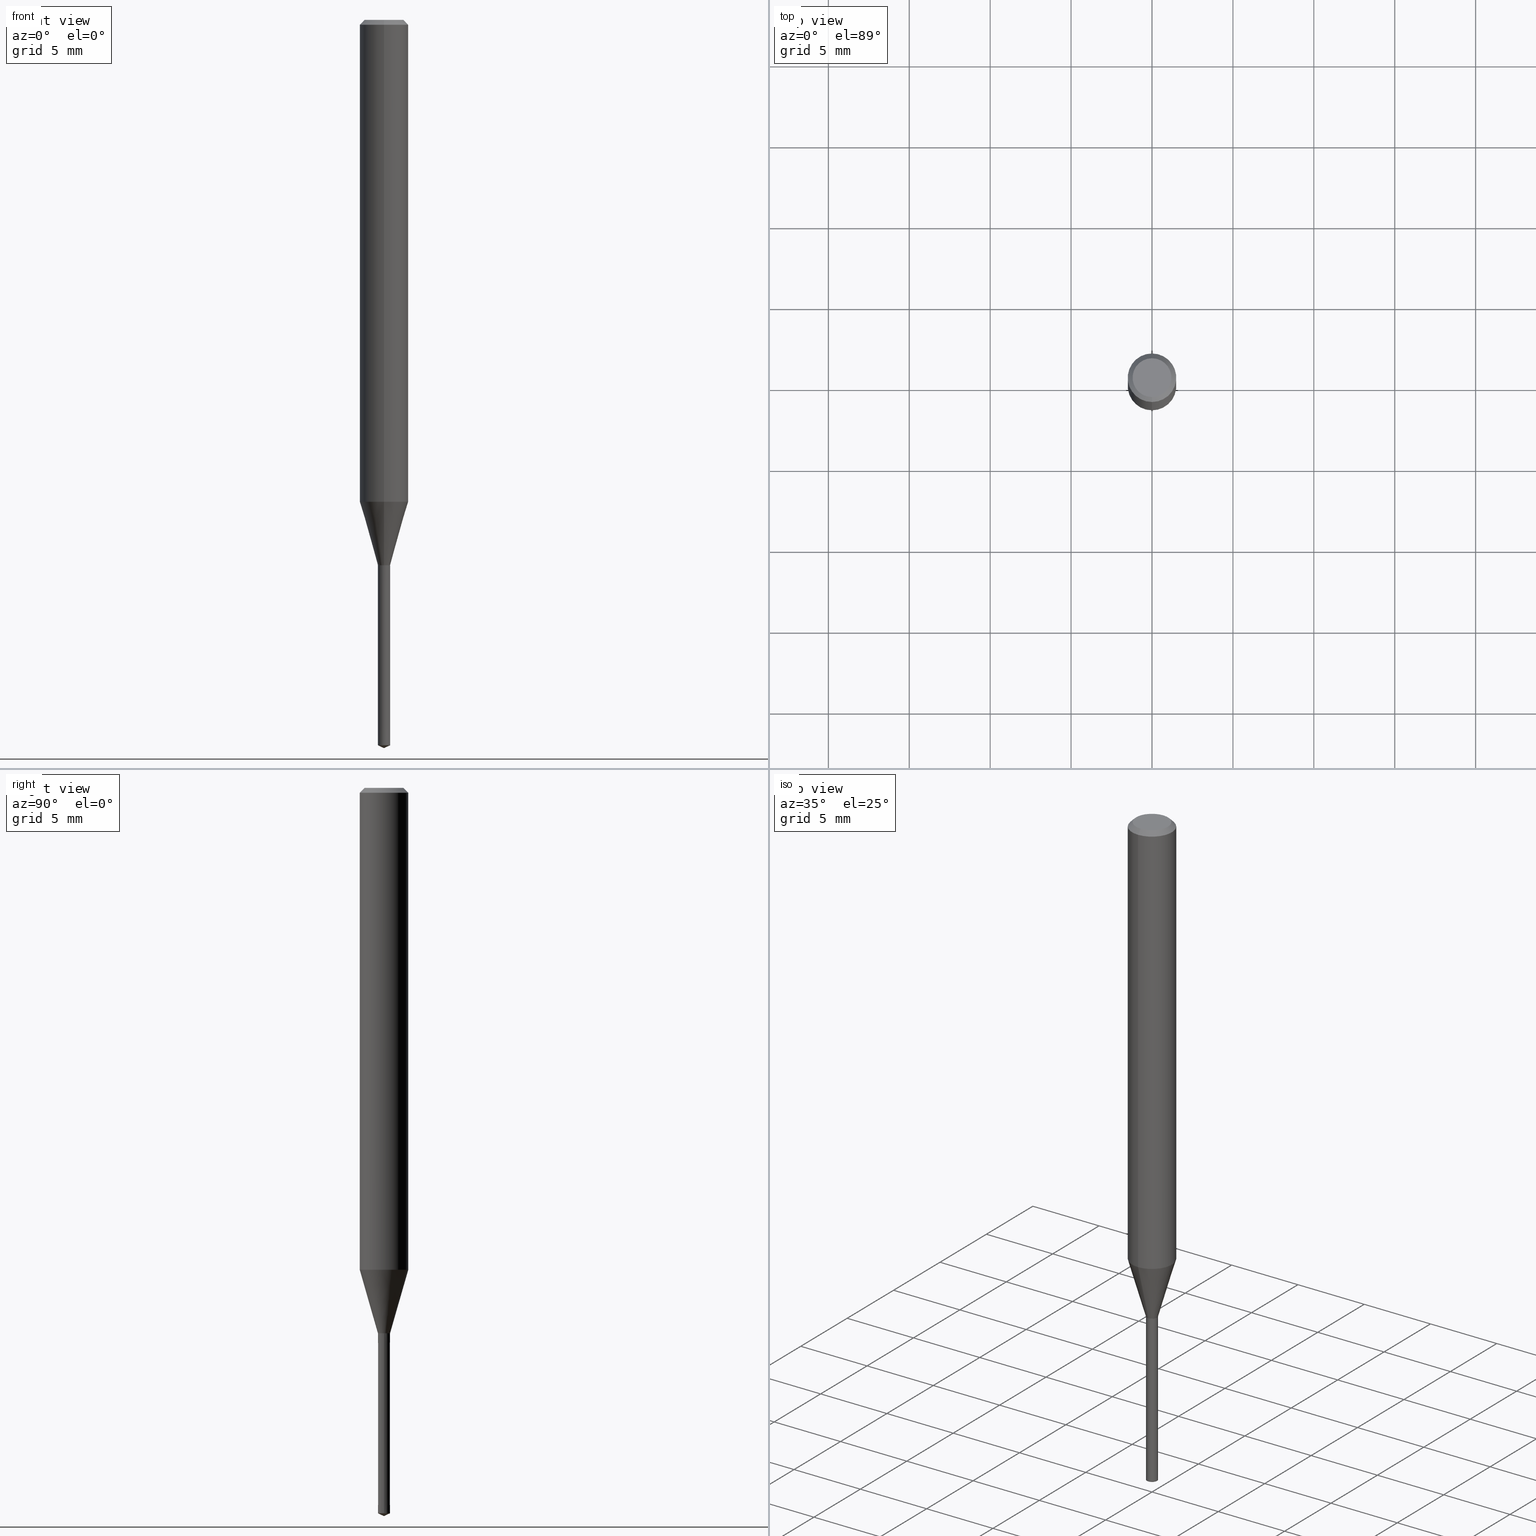
[diagram: canonical four-view strip — front | top / right | iso, engineering-drawing reading convention]
A machine part, canonical four-view strip (front | top / right | iso — engineering-drawing reading convention). The complete STEP part file that produces these views, byte-faithful:
ISO-10303-21;
HEADER;
FILE_DESCRIPTION(('no description'),'unknown implementation level');
FILE_NAME('UTDLX2075-113-Huellk.stp','  ',('CIMSOURCE GmbH'),('CADClick - KiM GmbH - www.kimweb.de'),'unknown preprocess','ACIS','unknown authorization');
FILE_SCHEMA(('automotive_design'));
ENDSEC;
DATA;
#1=MECHANICAL_DESIGN_GEOMETRIC_PRESENTATION_REPRESENTATION(' ',(#14,#15,#16,#17,#18,#19,#20,#21,#22,#23,#24,#25,#26,#27,#28,#29,#30,#31,#32,#33,#34,#35,#36,#37,#38,#39,#40,#41,#42,#43,#44,#45,#46,#47,#48,#49,#50,#51,#52,#53,#54,#55,#56,#57,#58,#59,#60,#61,#62,#63,#64,#65,#66,#67,#68,#69,#70,#71),#10);
#2=PRODUCT_DEFINITION_CONTEXT('',#72,'design');
#3=APPLICATION_PROTOCOL_DEFINITION('INTERNATIONAL STANDARD','automotive_design',1994,#72);
#4=PRODUCT_CATEGORY_RELATIONSHIP('NONE','NONE',#73,#74);
#5=SHAPE_DEFINITION_REPRESENTATION(#75,#76);
#6=PRODUCT_DEFINITION_CONTEXT('',#77,'design');
#7=APPLICATION_PROTOCOL_DEFINITION('INTERNATIONAL STANDARD','automotive_design',1994,#77);
#8=PRODUCT_CATEGORY_RELATIONSHIP('NONE','NONE',#78,#79);
#9=SHAPE_DEFINITION_REPRESENTATION(#80,#81);
#10= (GEOMETRIC_REPRESENTATION_CONTEXT(3)GLOBAL_UNCERTAINTY_ASSIGNED_CONTEXT((#84))GLOBAL_UNIT_ASSIGNED_CONTEXT((#86,#87,#88))REPRESENTATION_CONTEXT('NONE','WORKSPACE'));
#14=STYLED_ITEM('',(#90),#91);
#15=STYLED_ITEM('',(#92),#93);
#16=STYLED_ITEM('',(#94),#95);
#17=STYLED_ITEM('',(#96),#97);
#18=STYLED_ITEM('',(#98),#99);
#19=STYLED_ITEM('',(#100),#101);
#20=STYLED_ITEM('',(#102),#103);
#21=STYLED_ITEM('',(#104),#105);
#22=STYLED_ITEM('',(#106),#107);
#23=STYLED_ITEM('',(#108),#109);
#24=STYLED_ITEM('',(#110),#111);
#25=STYLED_ITEM('',(#112),#113);
#26=STYLED_ITEM('',(#114),#115);
#27=STYLED_ITEM('',(#116),#117);
#28=STYLED_ITEM('',(#118),#119);
#29=STYLED_ITEM('',(#120),#121);
#30=STYLED_ITEM('',(#122),#123);
#31=STYLED_ITEM('',(#124),#125);
#32=STYLED_ITEM('',(#126),#127);
#33=STYLED_ITEM('',(#128),#129);
#34=STYLED_ITEM('',(#130),#131);
#35=STYLED_ITEM('',(#132),#133);
#36=STYLED_ITEM('',(#134),#135);
#37=STYLED_ITEM('',(#136),#137);
#38=STYLED_ITEM('',(#138),#139);
#39=STYLED_ITEM('',(#140),#141);
#40=STYLED_ITEM('',(#142),#143);
#41=STYLED_ITEM('',(#144),#145);
#42=STYLED_ITEM('',(#146),#147);
#43=STYLED_ITEM('',(#148),#149);
#44=STYLED_ITEM('',(#150),#151);
#45=STYLED_ITEM('',(#152),#153);
#46=STYLED_ITEM('',(#154),#155);
#47=STYLED_ITEM('',(#156),#157);
#48=STYLED_ITEM('',(#158),#159);
#49=STYLED_ITEM('',(#160),#161);
#50=STYLED_ITEM('',(#162),#163);
#51=STYLED_ITEM('',(#164),#165);
#52=STYLED_ITEM('',(#166),#167);
#53=STYLED_ITEM('',(#168),#169);
#54=STYLED_ITEM('',(#170),#171);
#55=STYLED_ITEM('',(#172),#173);
#56=STYLED_ITEM('',(#174),#175);
#57=STYLED_ITEM('',(#176),#177);
#58=STYLED_ITEM('',(#178),#179);
#59=STYLED_ITEM('',(#180),#181);
#60=STYLED_ITEM('',(#182),#183);
#61=STYLED_ITEM('',(#184),#185);
#62=STYLED_ITEM('',(#186),#187);
#63=STYLED_ITEM('',(#188),#189);
#64=STYLED_ITEM('',(#190),#191);
#65=STYLED_ITEM('',(#192),#193);
#66=STYLED_ITEM('',(#194),#195);
#67=STYLED_ITEM('',(#196),#197);
#68=STYLED_ITEM('',(#198),#199);
#69=STYLED_ITEM('',(#200),#201);
#70=STYLED_ITEM('',(#202),#203);
#71=STYLED_ITEM('',(#204),#205);
#72=APPLICATION_CONTEXT(' ');
#73=PRODUCT_CATEGORY('part','NONE');
#74=PRODUCT_RELATED_PRODUCT_CATEGORY('detail',' ',(#206));
#75=PRODUCT_DEFINITION_SHAPE('NONE','NONE',#207);
#76=ADVANCED_BREP_SHAPE_REPRESENTATION('1',(#91,#208),#10);
#77=APPLICATION_CONTEXT(' ');
#78=PRODUCT_CATEGORY('part','NONE');
#79=PRODUCT_RELATED_PRODUCT_CATEGORY('detail',' ',(#209));
#80=PRODUCT_DEFINITION_SHAPE('NONE','NONE',#210);
#81=ADVANCED_BREP_SHAPE_REPRESENTATION('2',(#111,#211),#10);
#84=UNCERTAINTY_MEASURE_WITH_UNIT(LENGTH_MEASURE(1.0E-006),#86,'','');
#86= (CONVERSION_BASED_UNIT('MILLIMETRE',#214)LENGTH_UNIT()NAMED_UNIT(#217));
#87= (NAMED_UNIT(#219)PLANE_ANGLE_UNIT()SI_UNIT($,.RADIAN.));
#88= (NAMED_UNIT(#219)SOLID_ANGLE_UNIT()SI_UNIT($,.STERADIAN.));
#90=PRESENTATION_STYLE_ASSIGNMENT((#225));
#91=MANIFOLD_SOLID_BREP('1',#226);
#92=PRESENTATION_STYLE_ASSIGNMENT((#227));
#93=VERTEX_POINT('',#228);
#94=PRESENTATION_STYLE_ASSIGNMENT((#229));
#95=EDGE_CURVE('',#107,#197,#230,.T.);
#96=PRESENTATION_STYLE_ASSIGNMENT((#231));
#97=EDGE_CURVE('',#183,#175,#232,.T.);
#98=PRESENTATION_STYLE_ASSIGNMENT((#233));
#99=EDGE_CURVE('',#127,#193,#234,.T.);
#100=PRESENTATION_STYLE_ASSIGNMENT((#235));
#101=ADVANCED_FACE('',(#236),#237,.T.);
#102=PRESENTATION_STYLE_ASSIGNMENT((#238));
#103=EDGE_CURVE('',#143,#121,#239,.T.);
#104=PRESENTATION_STYLE_ASSIGNMENT((#240));
#105=ADVANCED_FACE('',(#241),#242,.T.);
#106=PRESENTATION_STYLE_ASSIGNMENT((#243));
#107=VERTEX_POINT('',#244);
#108=PRESENTATION_STYLE_ASSIGNMENT((#245));
#109=ADVANCED_FACE('',(#246),#247,.T.);
#110=PRESENTATION_STYLE_ASSIGNMENT((#248));
#111=MANIFOLD_SOLID_BREP('2',#249);
#112=PRESENTATION_STYLE_ASSIGNMENT((#250));
#113=ADVANCED_FACE('',(#251),#252,.T.);
#114=PRESENTATION_STYLE_ASSIGNMENT((#253));
#115=EDGE_CURVE('',#185,#143,#254,.T.);
#116=PRESENTATION_STYLE_ASSIGNMENT((#255));
#117=EDGE_CURVE('',#143,#119,#256,.T.);
#118=PRESENTATION_STYLE_ASSIGNMENT((#257));
#119=VERTEX_POINT('',#258);
#120=PRESENTATION_STYLE_ASSIGNMENT((#259));
#121=VERTEX_POINT('',#260);
#122=PRESENTATION_STYLE_ASSIGNMENT((#261));
#123=EDGE_CURVE('',#175,#129,#262,.T.);
#124=PRESENTATION_STYLE_ASSIGNMENT((#263));
#125=ADVANCED_FACE('',(#264),#265,.T.);
#126=PRESENTATION_STYLE_ASSIGNMENT((#266));
#127=VERTEX_POINT('',#267);
#128=PRESENTATION_STYLE_ASSIGNMENT((#268));
#129=VERTEX_POINT('',#269);
#130=PRESENTATION_STYLE_ASSIGNMENT((#270));
#131=EDGE_CURVE('',#183,#137,#271,.T.);
#132=PRESENTATION_STYLE_ASSIGNMENT((#272));
#133=EDGE_CURVE('',#191,#129,#273,.T.);
#134=PRESENTATION_STYLE_ASSIGNMENT((#274));
#135=EDGE_CURVE('',#121,#185,#275,.T.);
#136=PRESENTATION_STYLE_ASSIGNMENT((#276));
#137=VERTEX_POINT('',#277);
#138=PRESENTATION_STYLE_ASSIGNMENT((#278));
#139=ADVANCED_FACE('',(#279),#280,.T.);
#140=PRESENTATION_STYLE_ASSIGNMENT((#281));
#141=ADVANCED_FACE('',(#282),#283,.T.);
#142=PRESENTATION_STYLE_ASSIGNMENT((#284));
#143=VERTEX_POINT('',#285);
#144=PRESENTATION_STYLE_ASSIGNMENT((#286));
#145=VERTEX_POINT('',#287);
#146=PRESENTATION_STYLE_ASSIGNMENT((#288));
#147=ADVANCED_FACE('',(#289),#290,.T.);
#148=PRESENTATION_STYLE_ASSIGNMENT((#291));
#149=ADVANCED_FACE('',(#292),#293,.T.);
#150=PRESENTATION_STYLE_ASSIGNMENT((#294));
#151=EDGE_CURVE('',#197,#107,#295,.T.);
#152=PRESENTATION_STYLE_ASSIGNMENT((#296));
#153=EDGE_CURVE('',#175,#93,#297,.T.);
#154=PRESENTATION_STYLE_ASSIGNMENT((#298));
#155=ADVANCED_FACE('',(#299),#300,.T.);
#156=PRESENTATION_STYLE_ASSIGNMENT((#301));
#157=EDGE_CURVE('',#197,#183,#302,.T.);
#158=PRESENTATION_STYLE_ASSIGNMENT((#303));
#159=EDGE_CURVE('',#93,#191,#304,.T.);
#160=PRESENTATION_STYLE_ASSIGNMENT((#305));
#161=EDGE_CURVE('',#129,#137,#306,.T.);
#162=PRESENTATION_STYLE_ASSIGNMENT((#307));
#163=EDGE_CURVE('',#129,#175,#308,.T.);
#164=PRESENTATION_STYLE_ASSIGNMENT((#309));
#165=EDGE_CURVE('',#145,#121,#310,.T.);
#166=PRESENTATION_STYLE_ASSIGNMENT((#311));
#167=EDGE_CURVE('',#121,#143,#312,.T.);
#168=PRESENTATION_STYLE_ASSIGNMENT((#313));
#169=ADVANCED_FACE('',(#314),#315,.T.);
#170=PRESENTATION_STYLE_ASSIGNMENT((#316));
#171=EDGE_CURVE('',#127,#197,#317,.T.);
#172=PRESENTATION_STYLE_ASSIGNMENT((#318));
#173=EDGE_CURVE('',#191,#93,#319,.T.);
#174=PRESENTATION_STYLE_ASSIGNMENT((#320));
#175=VERTEX_POINT('',#321);
#176=PRESENTATION_STYLE_ASSIGNMENT((#322));
#177=ADVANCED_FACE('',(#323),#324,.T.);
#178=PRESENTATION_STYLE_ASSIGNMENT((#325));
#179=EDGE_CURVE('',#137,#183,#326,.T.);
#180=PRESENTATION_STYLE_ASSIGNMENT((#327));
#181=ADVANCED_FACE('',(#328),#329,.T.);
#182=PRESENTATION_STYLE_ASSIGNMENT((#330));
#183=VERTEX_POINT('',#331);
#184=PRESENTATION_STYLE_ASSIGNMENT((#332));
#185=VERTEX_POINT('',#333);
#186=PRESENTATION_STYLE_ASSIGNMENT((#334));
#187=ADVANCED_FACE('',(#335),#336,.T.);
#188=PRESENTATION_STYLE_ASSIGNMENT((#337));
#189=EDGE_CURVE('',#107,#193,#338,.T.);
#190=PRESENTATION_STYLE_ASSIGNMENT((#339));
#191=VERTEX_POINT('',#340);
#192=PRESENTATION_STYLE_ASSIGNMENT((#341));
#193=VERTEX_POINT('',#342);
#194=PRESENTATION_STYLE_ASSIGNMENT((#343));
#195=EDGE_CURVE('',#119,#145,#344,.T.);
#196=PRESENTATION_STYLE_ASSIGNMENT((#345));
#197=VERTEX_POINT('',#346);
#198=PRESENTATION_STYLE_ASSIGNMENT((#347));
#199=EDGE_CURVE('',#137,#107,#348,.T.);
#200=PRESENTATION_STYLE_ASSIGNMENT((#349));
#201=ADVANCED_FACE('',(#350),#351,.T.);
#202=PRESENTATION_STYLE_ASSIGNMENT((#352));
#203=EDGE_CURVE('',#193,#127,#353,.T.);
#204=PRESENTATION_STYLE_ASSIGNMENT((#354));
#205=EDGE_CURVE('',#145,#119,#355,.T.);
#206=PRODUCT('1','1','PART-1-DESC',(#356));
#207=PRODUCT_DEFINITION('NONE','NONE',#357,#2);
#208=AXIS2_PLACEMENT_3D('',#358,#359,#360);
#209=PRODUCT('2','2','PART-2-DESC',(#361));
#210=PRODUCT_DEFINITION('NONE','NONE',#362,#6);
#211=AXIS2_PLACEMENT_3D('',#363,#364,#365);
#214=LENGTH_MEASURE_WITH_UNIT(LENGTH_MEASURE(1.0),#366);
#217=DIMENSIONAL_EXPONENTS(1.0,0.0,0.0,0.0,0.0,0.0,0.0);
#219=DIMENSIONAL_EXPONENTS(0.0,0.0,0.0,0.0,0.0,0.0,0.0);
#225=SURFACE_STYLE_USAGE(.BOTH.,#367);
#226=CLOSED_SHELL('',(#147,#113,#169,#177,#201,#187,#101,#125,#149,#109));
#227=POINT_STYLE(' ',#368,POSITIVE_LENGTH_MEASURE(1.0E-006),#369);
#228=CARTESIAN_POINT('',(1.46952762458685E-016,-1.2,0.0));
#229=CURVE_STYLE('',#370,POSITIVE_LENGTH_MEASURE(1.0E-006),#371);
#230=CIRCLE('',#372,0.375);
#231=CURVE_STYLE('',#373,POSITIVE_LENGTH_MEASURE(1.0E-006),#374);
#232=LINE('',#375,#376);
#233=CURVE_STYLE('',#377,POSITIVE_LENGTH_MEASURE(1.0E-006),#378);
#234=CIRCLE('',#379,0.3755);
#235=SURFACE_STYLE_USAGE(.BOTH.,#380);
#236=FACE_OUTER_BOUND('',#381,.T.);
#237=CYLINDRICAL_SURFACE('',#382,1.5);
#238=CURVE_STYLE('',#383,POSITIVE_LENGTH_MEASURE(1.0E-006),#384);
#239=CIRCLE('',#385,0.375);
#240=SURFACE_STYLE_USAGE(.BOTH.,#386);
#241=FACE_OUTER_BOUND('',#387,.T.);
#242=CONICAL_SURFACE('',#388,0.3755,8.9886552438674E-005);
#243=POINT_STYLE(' ',#389,POSITIVE_LENGTH_MEASURE(1.0E-006),#390);
#244=CARTESIAN_POINT('',(0.0,0.375,-33.6991339745962));
#245=SURFACE_STYLE_USAGE(.BOTH.,#391);
#246=FACE_OUTER_BOUND('',#392,.T.);
#247=PLANE('',#393);
#248=SURFACE_STYLE_USAGE(.BOTH.,#394);
#249=CLOSED_SHELL('',(#155,#105,#139,#181,#141));
#250=SURFACE_STYLE_USAGE(.BOTH.,#395);
#251=FACE_OUTER_BOUND('',#396,.T.);
#252=CONICAL_SURFACE('',#397,0.9375,0.279334235816107);
#253=CURVE_STYLE('',#398,POSITIVE_LENGTH_MEASURE(1.0E-006),#399);
#254=LINE('',#400,#401);
#255=CURVE_STYLE('',#402,POSITIVE_LENGTH_MEASURE(1.0E-006),#403);
#256=LINE('',#404,#405);
#257=POINT_STYLE(' ',#406,POSITIVE_LENGTH_MEASURE(1.0E-006),#407);
#258=CARTESIAN_POINT('',(0.376,4.60451989037214E-017,-33.7));
#259=POINT_STYLE(' ',#408,POSITIVE_LENGTH_MEASURE(1.0E-006),#409);
#260=CARTESIAN_POINT('',(-0.375,0.0,-44.82513463));
#261=CURVE_STYLE('',#410,POSITIVE_LENGTH_MEASURE(1.0E-006),#411);
#262=CIRCLE('',#412,1.5);
#263=SURFACE_STYLE_USAGE(.BOTH.,#413);
#264=FACE_OUTER_BOUND('',#414,.T.);
#265=CONICAL_SURFACE('',#415,0.9375,0.279334235816107);
#266=POINT_STYLE(' ',#416,POSITIVE_LENGTH_MEASURE(1.0E-006),#417);
#267=CARTESIAN_POINT('',(4.59839685860303E-017,-0.3755,-33.7));
#268=POINT_STYLE(' ',#418,POSITIVE_LENGTH_MEASURE(1.0E-006),#419);
#269=CARTESIAN_POINT('',(0.0,1.5,-0.300000000000001));
#270=CURVE_STYLE('',#420,POSITIVE_LENGTH_MEASURE(1.0E-006),#421);
#271=CIRCLE('',#422,1.5);
#272=CURVE_STYLE('',#423,POSITIVE_LENGTH_MEASURE(1.0E-006),#424);
#273=LINE('',#425,#426);
#274=CURVE_STYLE('',#427,POSITIVE_LENGTH_MEASURE(1.0E-006),#428);
#275=LINE('',#429,#430);
#276=POINT_STYLE(' ',#431,POSITIVE_LENGTH_MEASURE(1.0E-006),#432);
#277=CARTESIAN_POINT('',(0.0,1.5,-29.777));
#278=SURFACE_STYLE_USAGE(.BOTH.,#433);
#279=FACE_OUTER_BOUND('',#434,.T.);
#280=PLANE('',#435);
#281=SURFACE_STYLE_USAGE(.BOTH.,#436);
#282=FACE_OUTER_BOUND('',#437,.T.);
#283=CONICAL_SURFACE('',#438,0.1875,1.1344640177568);
#284=POINT_STYLE(' ',#439,POSITIVE_LENGTH_MEASURE(1.0E-006),#440);
#285=CARTESIAN_POINT('',(0.375,4.59227382683391E-017,-44.82513463));
#286=POINT_STYLE(' ',#441,POSITIVE_LENGTH_MEASURE(1.0E-006),#442);
#287=CARTESIAN_POINT('',(-0.376,0.0,-33.7));
#288=SURFACE_STYLE_USAGE(.BOTH.,#443);
#289=FACE_OUTER_BOUND('',#444,.T.);
#290=CONICAL_SURFACE('',#445,0.37525,0.523598775598408);
#291=SURFACE_STYLE_USAGE(.BOTH.,#446);
#292=FACE_OUTER_BOUND('',#447,.T.);
#293=CONICAL_SURFACE('',#448,0.37525,0.523598775598408);
#294=CURVE_STYLE('',#449,POSITIVE_LENGTH_MEASURE(1.0E-006),#450);
#295=CIRCLE('',#451,0.375);
#296=CURVE_STYLE('',#452,POSITIVE_LENGTH_MEASURE(1.0E-006),#453);
#297=LINE('',#454,#455);
#298=SURFACE_STYLE_USAGE(.BOTH.,#456);
#299=FACE_OUTER_BOUND('',#457,.T.);
#300=CONICAL_SURFACE('',#458,0.1875,1.1344640177568);
#301=CURVE_STYLE('',#459,POSITIVE_LENGTH_MEASURE(1.0E-006),#460);
#302=LINE('',#461,#462);
#303=CURVE_STYLE('',#463,POSITIVE_LENGTH_MEASURE(1.0E-006),#464);
#304=CIRCLE('',#465,1.2);
#305=CURVE_STYLE('',#466,POSITIVE_LENGTH_MEASURE(1.0E-006),#467);
#306=LINE('',#468,#469);
#307=CURVE_STYLE('',#470,POSITIVE_LENGTH_MEASURE(1.0E-006),#471);
#308=CIRCLE('',#472,1.5);
#309=CURVE_STYLE('',#473,POSITIVE_LENGTH_MEASURE(1.0E-006),#474);
#310=LINE('',#475,#476);
#311=CURVE_STYLE('',#477,POSITIVE_LENGTH_MEASURE(1.0E-006),#478);
#312=CIRCLE('',#479,0.375);
#313=SURFACE_STYLE_USAGE(.BOTH.,#480);
#314=FACE_OUTER_BOUND('',#481,.T.);
#315=CYLINDRICAL_SURFACE('',#482,1.5);
#316=CURVE_STYLE('',#483,POSITIVE_LENGTH_MEASURE(1.0E-006),#484);
#317=LINE('',#485,#486);
#318=CURVE_STYLE('',#487,POSITIVE_LENGTH_MEASURE(1.0E-006),#488);
#319=CIRCLE('',#489,1.2);
#320=POINT_STYLE(' ',#490,POSITIVE_LENGTH_MEASURE(1.0E-006),#491);
#321=CARTESIAN_POINT('',(1.83690953073357E-016,-1.5,-0.300000000000001));
#322=SURFACE_STYLE_USAGE(.BOTH.,#492);
#323=FACE_OUTER_BOUND('',#493,.T.);
#324=CONICAL_SURFACE('',#494,1.35,0.785398163397447);
#325=CURVE_STYLE('',#495,POSITIVE_LENGTH_MEASURE(1.0E-006),#496);
#326=CIRCLE('',#497,1.5);
#327=SURFACE_STYLE_USAGE(.BOTH.,#498);
#328=FACE_OUTER_BOUND('',#499,.T.);
#329=CONICAL_SURFACE('',#500,0.3755,8.9886552438674E-005);
#330=POINT_STYLE(' ',#501,POSITIVE_LENGTH_MEASURE(1.0E-006),#502);
#331=CARTESIAN_POINT('',(1.83690953073357E-016,-1.5,-29.777));
#332=POINT_STYLE(' ',#503,POSITIVE_LENGTH_MEASURE(1.0E-006),#504);
#333=CARTESIAN_POINT('',(0.0,0.0,-45.0));
#334=SURFACE_STYLE_USAGE(.BOTH.,#505);
#335=FACE_OUTER_BOUND('',#506,.T.);
#336=CONICAL_SURFACE('',#507,1.35,0.785398163397447);
#337=CURVE_STYLE('',#508,POSITIVE_LENGTH_MEASURE(1.0E-006),#509);
#338=LINE('',#510,#511);
#339=POINT_STYLE(' ',#512,POSITIVE_LENGTH_MEASURE(1.0E-006),#513);
#340=CARTESIAN_POINT('',(0.0,1.2,0.0));
#341=POINT_STYLE(' ',#514,POSITIVE_LENGTH_MEASURE(1.0E-006),#515);
#342=CARTESIAN_POINT('',(0.0,0.3755,-33.7));
#343=CURVE_STYLE('',#516,POSITIVE_LENGTH_MEASURE(1.0E-006),#517);
#344=CIRCLE('',#518,0.376);
#345=POINT_STYLE(' ',#519,POSITIVE_LENGTH_MEASURE(1.0E-006),#520);
#346=CARTESIAN_POINT('',(4.59227382683391E-017,-0.375,-33.6991339745962));
#347=CURVE_STYLE('',#521,POSITIVE_LENGTH_MEASURE(1.0E-006),#522);
#348=LINE('',#523,#524);
#349=SURFACE_STYLE_USAGE(.BOTH.,#525);
#350=FACE_OUTER_BOUND('',#526,.T.);
#351=PLANE('',#527);
#352=CURVE_STYLE('',#528,POSITIVE_LENGTH_MEASURE(1.0E-006),#529);
#353=CIRCLE('',#530,0.3755);
#354=CURVE_STYLE('',#531,POSITIVE_LENGTH_MEASURE(1.0E-006),#532);
#355=CIRCLE('',#533,0.376);
#356=PRODUCT_CONTEXT('',#72,'mechanical');
#357=PRODUCT_DEFINITION_FORMATION_WITH_SPECIFIED_SOURCE(' ','NONE',#206,.NOT_KNOWN.);
#358=CARTESIAN_POINT('',(0.0,0.0,0.0));
#359=DIRECTION('',(0.0,0.0,1.0));
#360=DIRECTION('',(1.0,0.0,0.0));
#361=PRODUCT_CONTEXT('',#77,'mechanical');
#362=PRODUCT_DEFINITION_FORMATION_WITH_SPECIFIED_SOURCE(' ','NONE',#209,.NOT_KNOWN.);
#363=CARTESIAN_POINT('',(0.0,0.0,0.0));
#364=DIRECTION('',(0.0,0.0,1.0));
#365=DIRECTION('',(1.0,0.0,0.0));
#366= (NAMED_UNIT(#217)LENGTH_UNIT()SI_UNIT(.MILLI.,.METRE.));
#367=SURFACE_SIDE_STYLE('',(#535));
#368=PRE_DEFINED_MARKER('');
#369=COLOUR_RGB('',0.498039215803146,0.498039215803146,0.498039215803146);
#370=DRAUGHTING_PRE_DEFINED_CURVE_FONT('continuous');
#371=COLOUR_RGB('',0.498039215803146,0.498039215803146,0.498039215803146);
#372=AXIS2_PLACEMENT_3D('',#536,#537,#538);
#373=DRAUGHTING_PRE_DEFINED_CURVE_FONT('continuous');
#374=COLOUR_RGB('',0.498039215803146,0.498039215803146,0.498039215803146);
#375=CARTESIAN_POINT('',(1.83690953073357E-016,-1.5,-15.0385));
#376=VECTOR('',#539,1.0);
#377=DRAUGHTING_PRE_DEFINED_CURVE_FONT('continuous');
#378=COLOUR_RGB('',0.498039215803146,0.498039215803146,0.498039215803146);
#379=AXIS2_PLACEMENT_3D('',#540,#541,#542);
#380=SURFACE_SIDE_STYLE('',(#543));
#381=EDGE_LOOP('',(#544,#545,#546,#547));
#382=AXIS2_PLACEMENT_3D('',#548,#549,#550);
#383=DRAUGHTING_PRE_DEFINED_CURVE_FONT('continuous');
#384=COLOUR_RGB('',0.800000011920929,0.800000011920929,0.800000011920929);
#385=AXIS2_PLACEMENT_3D('',#551,#552,#553);
#386=SURFACE_SIDE_STYLE('',(#554));
#387=EDGE_LOOP('',(#555,#556,#557,#558));
#388=AXIS2_PLACEMENT_3D('',#559,#560,#561);
#389=PRE_DEFINED_MARKER('');
#390=COLOUR_RGB('',0.498039215803146,0.498039215803146,0.498039215803146);
#391=SURFACE_SIDE_STYLE('',(#562));
#392=EDGE_LOOP('',(#563,#564));
#393=AXIS2_PLACEMENT_3D('',#565,#566,#567);
#394=SURFACE_SIDE_STYLE('',(#568));
#395=SURFACE_SIDE_STYLE('',(#569));
#396=EDGE_LOOP('',(#570,#571,#572,#573));
#397=AXIS2_PLACEMENT_3D('',#574,#575,#576);
#398=DRAUGHTING_PRE_DEFINED_CURVE_FONT('continuous');
#399=COLOUR_RGB('',0.800000011920929,0.800000011920929,0.800000011920929);
#400=CARTESIAN_POINT('',(0.1875,2.29613691341696E-017,-44.912567315));
#401=VECTOR('',#577,1.0);
#402=DRAUGHTING_PRE_DEFINED_CURVE_FONT('continuous');
#403=COLOUR_RGB('',0.800000011920929,0.800000011920929,0.800000011920929);
#404=CARTESIAN_POINT('',(0.3755,4.59839685860303E-017,-39.262567315));
#405=VECTOR('',#578,1.0);
#406=PRE_DEFINED_MARKER('');
#407=COLOUR_RGB('',0.800000011920929,0.800000011920929,0.800000011920929);
#408=PRE_DEFINED_MARKER('');
#409=COLOUR_RGB('',0.800000011920929,0.800000011920929,0.800000011920929);
#410=DRAUGHTING_PRE_DEFINED_CURVE_FONT('continuous');
#411=COLOUR_RGB('',0.498039215803146,0.498039215803146,0.498039215803146);
#412=AXIS2_PLACEMENT_3D('',#579,#580,#581);
#413=SURFACE_SIDE_STYLE('',(#582));
#414=EDGE_LOOP('',(#583,#584,#585,#586));
#415=AXIS2_PLACEMENT_3D('',#587,#588,#589);
#416=PRE_DEFINED_MARKER('');
#417=COLOUR_RGB('',0.498039215803146,0.498039215803146,0.498039215803146);
#418=PRE_DEFINED_MARKER('');
#419=COLOUR_RGB('',0.498039215803146,0.498039215803146,0.498039215803146);
#420=DRAUGHTING_PRE_DEFINED_CURVE_FONT('continuous');
#421=COLOUR_RGB('',0.498039215803146,0.498039215803146,0.498039215803146);
#422=AXIS2_PLACEMENT_3D('',#590,#591,#592);
#423=DRAUGHTING_PRE_DEFINED_CURVE_FONT('continuous');
#424=COLOUR_RGB('',0.498039215803146,0.498039215803146,0.498039215803146);
#425=CARTESIAN_POINT('',(-1.65321857766021E-016,1.35,-0.150000000000002));
#426=VECTOR('',#593,1.0);
#427=DRAUGHTING_PRE_DEFINED_CURVE_FONT('continuous');
#428=COLOUR_RGB('',0.800000011920929,0.800000011920929,0.800000011920929);
#429=CARTESIAN_POINT('',(-0.1875,-2.29613691341696E-017,-44.912567315));
#430=VECTOR('',#594,1.0);
#431=PRE_DEFINED_MARKER('');
#432=COLOUR_RGB('',0.498039215803146,0.498039215803146,0.498039215803146);
#433=SURFACE_SIDE_STYLE('',(#595));
#434=EDGE_LOOP('',(#596,#597));
#435=AXIS2_PLACEMENT_3D('',#598,#599,#600);
#436=SURFACE_SIDE_STYLE('',(#601));
#437=EDGE_LOOP('',(#602,#603,#604));
#438=AXIS2_PLACEMENT_3D('',#605,#606,#607);
#439=PRE_DEFINED_MARKER('');
#440=COLOUR_RGB('',0.800000011920929,0.800000011920929,0.800000011920929);
#441=PRE_DEFINED_MARKER('');
#442=COLOUR_RGB('',0.800000011920929,0.800000011920929,0.800000011920929);
#443=SURFACE_SIDE_STYLE('',(#608));
#444=EDGE_LOOP('',(#609,#610,#611,#612));
#445=AXIS2_PLACEMENT_3D('',#613,#614,#615);
#446=SURFACE_SIDE_STYLE('',(#616));
#447=EDGE_LOOP('',(#617,#618,#619,#620));
#448=AXIS2_PLACEMENT_3D('',#621,#622,#623);
#449=DRAUGHTING_PRE_DEFINED_CURVE_FONT('continuous');
#450=COLOUR_RGB('',0.498039215803146,0.498039215803146,0.498039215803146);
#451=AXIS2_PLACEMENT_3D('',#624,#625,#626);
#452=DRAUGHTING_PRE_DEFINED_CURVE_FONT('continuous');
#453=COLOUR_RGB('',0.498039215803146,0.498039215803146,0.498039215803146);
#454=CARTESIAN_POINT('',(1.65321857766021E-016,-1.35,-0.150000000000002));
#455=VECTOR('',#627,1.0);
#456=SURFACE_SIDE_STYLE('',(#628));
#457=EDGE_LOOP('',(#629,#630,#631));
#458=AXIS2_PLACEMENT_3D('',#632,#633,#634);
#459=DRAUGHTING_PRE_DEFINED_CURVE_FONT('continuous');
#460=COLOUR_RGB('',0.498039215803146,0.498039215803146,0.498039215803146);
#461=CARTESIAN_POINT('',(1.14806845670848E-016,-0.9375,-31.7380669872981));
#462=VECTOR('',#635,1.0);
#463=DRAUGHTING_PRE_DEFINED_CURVE_FONT('continuous');
#464=COLOUR_RGB('',0.498039215803146,0.498039215803146,0.498039215803146);
#465=AXIS2_PLACEMENT_3D('',#636,#637,#638);
#466=DRAUGHTING_PRE_DEFINED_CURVE_FONT('continuous');
#467=COLOUR_RGB('',0.498039215803146,0.498039215803146,0.498039215803146);
#468=CARTESIAN_POINT('',(-1.83690953073357E-016,1.5,-15.0385));
#469=VECTOR('',#639,1.0);
#470=DRAUGHTING_PRE_DEFINED_CURVE_FONT('continuous');
#471=COLOUR_RGB('',0.498039215803146,0.498039215803146,0.498039215803146);
#472=AXIS2_PLACEMENT_3D('',#640,#641,#642);
#473=DRAUGHTING_PRE_DEFINED_CURVE_FONT('continuous');
#474=COLOUR_RGB('',0.800000011920929,0.800000011920929,0.800000011920929);
#475=CARTESIAN_POINT('',(-0.3755,-4.59839685860303E-017,-39.262567315));
#476=VECTOR('',#643,1.0);
#477=DRAUGHTING_PRE_DEFINED_CURVE_FONT('continuous');
#478=COLOUR_RGB('',0.800000011920929,0.800000011920929,0.800000011920929);
#479=AXIS2_PLACEMENT_3D('',#644,#645,#646);
#480=SURFACE_SIDE_STYLE('',(#647));
#481=EDGE_LOOP('',(#648,#649,#650,#651));
#482=AXIS2_PLACEMENT_3D('',#652,#653,#654);
#483=DRAUGHTING_PRE_DEFINED_CURVE_FONT('continuous');
#484=COLOUR_RGB('',0.498039215803146,0.498039215803146,0.498039215803146);
#485=CARTESIAN_POINT('',(4.59533534271847E-017,-0.37525,-33.6995669872981));
#486=VECTOR('',#655,1.0);
#487=DRAUGHTING_PRE_DEFINED_CURVE_FONT('continuous');
#488=COLOUR_RGB('',0.498039215803146,0.498039215803146,0.498039215803146);
#489=AXIS2_PLACEMENT_3D('',#656,#657,#658);
#490=PRE_DEFINED_MARKER('');
#491=COLOUR_RGB('',0.498039215803146,0.498039215803146,0.498039215803146);
#492=SURFACE_SIDE_STYLE('',(#659));
#493=EDGE_LOOP('',(#660,#661,#662,#663));
#494=AXIS2_PLACEMENT_3D('',#664,#665,#666);
#495=DRAUGHTING_PRE_DEFINED_CURVE_FONT('continuous');
#496=COLOUR_RGB('',0.498039215803146,0.498039215803146,0.498039215803146);
#497=AXIS2_PLACEMENT_3D('',#667,#668,#669);
#498=SURFACE_SIDE_STYLE('',(#670));
#499=EDGE_LOOP('',(#671,#672,#673,#674));
#500=AXIS2_PLACEMENT_3D('',#675,#676,#677);
#501=PRE_DEFINED_MARKER('');
#502=COLOUR_RGB('',0.498039215803146,0.498039215803146,0.498039215803146);
#503=PRE_DEFINED_MARKER('');
#504=COLOUR_RGB('',0.800000011920929,0.800000011920929,0.800000011920929);
#505=SURFACE_SIDE_STYLE('',(#678));
#506=EDGE_LOOP('',(#679,#680,#681,#682));
#507=AXIS2_PLACEMENT_3D('',#683,#684,#685);
#508=DRAUGHTING_PRE_DEFINED_CURVE_FONT('continuous');
#509=COLOUR_RGB('',0.498039215803146,0.498039215803146,0.498039215803146);
#510=CARTESIAN_POINT('',(-4.59533534271847E-017,0.37525,-33.6995669872981));
#511=VECTOR('',#686,1.0);
#512=PRE_DEFINED_MARKER('');
#513=COLOUR_RGB('',0.498039215803146,0.498039215803146,0.498039215803146);
#514=PRE_DEFINED_MARKER('');
#515=COLOUR_RGB('',0.498039215803146,0.498039215803146,0.498039215803146);
#516=DRAUGHTING_PRE_DEFINED_CURVE_FONT('continuous');
#517=COLOUR_RGB('',0.800000011920929,0.800000011920929,0.800000011920929);
#518=AXIS2_PLACEMENT_3D('',#687,#688,#689);
#519=PRE_DEFINED_MARKER('');
#520=COLOUR_RGB('',0.498039215803146,0.498039215803146,0.498039215803146);
#521=DRAUGHTING_PRE_DEFINED_CURVE_FONT('continuous');
#522=COLOUR_RGB('',0.498039215803146,0.498039215803146,0.498039215803146);
#523=CARTESIAN_POINT('',(-1.14806845670848E-016,0.9375,-31.7380669872981));
#524=VECTOR('',#690,1.0);
#525=SURFACE_SIDE_STYLE('',(#691));
#526=EDGE_LOOP('',(#692,#693));
#527=AXIS2_PLACEMENT_3D('',#694,#695,#696);
#528=DRAUGHTING_PRE_DEFINED_CURVE_FONT('continuous');
#529=COLOUR_RGB('',0.498039215803146,0.498039215803146,0.498039215803146);
#530=AXIS2_PLACEMENT_3D('',#697,#698,#699);
#531=DRAUGHTING_PRE_DEFINED_CURVE_FONT('continuous');
#532=COLOUR_RGB('',0.800000011920929,0.800000011920929,0.800000011920929);
#533=AXIS2_PLACEMENT_3D('',#700,#701,#702);
#535=SURFACE_STYLE_FILL_AREA(#703);
#536=CARTESIAN_POINT('',(0.0,0.0,-33.6991339745962));
#537=DIRECTION('',(0.0,0.0,-1.0));
#538=DIRECTION('',(0.0,1.0,0.0));
#539=DIRECTION('',(-0.0,-0.0,1.0));
#540=CARTESIAN_POINT('',(0.0,0.0,-33.7));
#541=DIRECTION('',(0.0,0.0,-1.0));
#542=DIRECTION('',(0.0,1.0,0.0));
#543=SURFACE_STYLE_FILL_AREA(#704);
#544=ORIENTED_EDGE('',*,*,#161,.T.);
#545=ORIENTED_EDGE('',*,*,#131,.F.);
#546=ORIENTED_EDGE('',*,*,#97,.T.);
#547=ORIENTED_EDGE('',*,*,#123,.T.);
#548=CARTESIAN_POINT('',(0.0,0.0,-15.0385));
#549=DIRECTION('',(-0.0,-0.0,1.0));
#550=DIRECTION('',(0.0,1.0,0.0));
#551=CARTESIAN_POINT('',(0.0,0.0,-44.82513463));
#552=DIRECTION('',(0.0,0.0,-1.0));
#553=DIRECTION('',(-1.0,0.0,0.0));
#554=SURFACE_STYLE_FILL_AREA(#705);
#555=ORIENTED_EDGE('',*,*,#165,.F.);
#556=ORIENTED_EDGE('',*,*,#205,.T.);
#557=ORIENTED_EDGE('',*,*,#117,.F.);
#558=ORIENTED_EDGE('',*,*,#167,.F.);
#559=CARTESIAN_POINT('',(0.0,0.0,-39.262567315));
#560=DIRECTION('',(-0.0,-0.0,1.0));
#561=DIRECTION('',(-1.0,0.0,0.0));
#562=SURFACE_STYLE_FILL_AREA(#706);
#563=ORIENTED_EDGE('',*,*,#203,.T.);
#564=ORIENTED_EDGE('',*,*,#99,.T.);
#565=CARTESIAN_POINT('',(0.0,0.18775,-33.7));
#566=DIRECTION('',(0.0,0.0,-1.0));
#567=DIRECTION('',(0.0,1.0,0.0));
#568=SURFACE_STYLE_FILL_AREA(#707);
#569=SURFACE_STYLE_FILL_AREA(#708);
#570=ORIENTED_EDGE('',*,*,#199,.F.);
#571=ORIENTED_EDGE('',*,*,#179,.T.);
#572=ORIENTED_EDGE('',*,*,#157,.F.);
#573=ORIENTED_EDGE('',*,*,#95,.F.);
#574=CARTESIAN_POINT('',(0.0,0.0,-31.7380669872981));
#575=DIRECTION('',(-0.0,-0.0,1.0));
#576=DIRECTION('',(0.0,1.0,0.0));
#577=DIRECTION('',(0.906307788710425,1.10987027657349E-016,0.422618258151278));
#578=DIRECTION('',(8.98865523176329E-005,1.10075643091361E-020,0.999999995960204));
#579=CARTESIAN_POINT('',(0.0,0.0,-0.300000000000001));
#580=DIRECTION('',(0.0,0.0,-1.0));
#581=DIRECTION('',(0.0,1.0,0.0));
#582=SURFACE_STYLE_FILL_AREA(#709);
#583=ORIENTED_EDGE('',*,*,#199,.T.);
#584=ORIENTED_EDGE('',*,*,#151,.F.);
#585=ORIENTED_EDGE('',*,*,#157,.T.);
#586=ORIENTED_EDGE('',*,*,#131,.T.);
#587=CARTESIAN_POINT('',(0.0,0.0,-31.7380669872981));
#588=DIRECTION('',(-0.0,-0.0,1.0));
#589=DIRECTION('',(0.0,1.0,0.0));
#590=CARTESIAN_POINT('',(0.0,0.0,-29.777));
#591=DIRECTION('',(0.0,0.0,-1.0));
#592=DIRECTION('',(0.0,1.0,0.0));
#593=DIRECTION('',(-8.65927457071934E-017,0.707106781186546,-0.707106781186549));
#594=DIRECTION('',(0.906307788710425,1.10987027657349E-016,-0.422618258151278));
#595=SURFACE_STYLE_FILL_AREA(#710);
#596=ORIENTED_EDGE('',*,*,#205,.F.);
#597=ORIENTED_EDGE('',*,*,#195,.F.);
#598=CARTESIAN_POINT('',(-0.188,0.0,-33.7));
#599=DIRECTION('',(0.0,0.0,1.0));
#600=DIRECTION('',(1.0,0.0,0.0));
#601=SURFACE_STYLE_FILL_AREA(#711);
#602=ORIENTED_EDGE('',*,*,#115,.T.);
#603=ORIENTED_EDGE('',*,*,#103,.T.);
#604=ORIENTED_EDGE('',*,*,#135,.T.);
#605=CARTESIAN_POINT('',(0.0,0.0,-44.912567315));
#606=DIRECTION('',(-0.0,-0.0,1.0));
#607=DIRECTION('',(-1.0,0.0,0.0));
#608=SURFACE_STYLE_FILL_AREA(#712);
#609=ORIENTED_EDGE('',*,*,#189,.F.);
#610=ORIENTED_EDGE('',*,*,#95,.T.);
#611=ORIENTED_EDGE('',*,*,#171,.F.);
#612=ORIENTED_EDGE('',*,*,#203,.F.);
#613=CARTESIAN_POINT('',(0.0,0.0,-33.6995669872981));
#614=DIRECTION('',(0.0,-0.0,-1.0));
#615=DIRECTION('',(0.0,1.0,0.0));
#616=SURFACE_STYLE_FILL_AREA(#713);
#617=ORIENTED_EDGE('',*,*,#189,.T.);
#618=ORIENTED_EDGE('',*,*,#99,.F.);
#619=ORIENTED_EDGE('',*,*,#171,.T.);
#620=ORIENTED_EDGE('',*,*,#151,.T.);
#621=CARTESIAN_POINT('',(0.0,0.0,-33.6995669872981));
#622=DIRECTION('',(0.0,-0.0,-1.0));
#623=DIRECTION('',(0.0,1.0,0.0));
#624=CARTESIAN_POINT('',(0.0,0.0,-33.6991339745962));
#625=DIRECTION('',(0.0,0.0,-1.0));
#626=DIRECTION('',(0.0,1.0,0.0));
#627=DIRECTION('',(-8.65927457071934E-017,0.707106781186546,0.707106781186549));
#628=SURFACE_STYLE_FILL_AREA(#714);
#629=ORIENTED_EDGE('',*,*,#115,.F.);
#630=ORIENTED_EDGE('',*,*,#135,.F.);
#631=ORIENTED_EDGE('',*,*,#167,.T.);
#632=CARTESIAN_POINT('',(0.0,0.0,-44.912567315));
#633=DIRECTION('',(-0.0,-0.0,1.0));
#634=DIRECTION('',(-1.0,0.0,0.0));
#635=DIRECTION('',(3.37643260616104E-017,-0.275715751075612,0.961239212999975));
#636=CARTESIAN_POINT('',(0.0,0.0,0.0));
#637=DIRECTION('',(0.0,0.0,-1.0));
#638=DIRECTION('',(0.0,1.0,0.0));
#639=DIRECTION('',(0.0,0.0,-1.0));
#640=CARTESIAN_POINT('',(0.0,0.0,-0.300000000000001));
#641=DIRECTION('',(0.0,0.0,-1.0));
#642=DIRECTION('',(0.0,1.0,0.0));
#643=DIRECTION('',(8.98865523176329E-005,1.10075643091361E-020,-0.999999995960204));
#644=CARTESIAN_POINT('',(0.0,0.0,-44.82513463));
#645=DIRECTION('',(0.0,0.0,-1.0));
#646=DIRECTION('',(-1.0,0.0,0.0));
#647=SURFACE_STYLE_FILL_AREA(#715);
#648=ORIENTED_EDGE('',*,*,#161,.F.);
#649=ORIENTED_EDGE('',*,*,#163,.T.);
#650=ORIENTED_EDGE('',*,*,#97,.F.);
#651=ORIENTED_EDGE('',*,*,#179,.F.);
#652=CARTESIAN_POINT('',(0.0,0.0,-15.0385));
#653=DIRECTION('',(-0.0,-0.0,1.0));
#654=DIRECTION('',(0.0,1.0,0.0));
#655=DIRECTION('',(-6.12303176911304E-017,0.500000000000095,0.866025403784384));
#656=CARTESIAN_POINT('',(0.0,0.0,0.0));
#657=DIRECTION('',(0.0,0.0,-1.0));
#658=DIRECTION('',(0.0,1.0,0.0));
#659=SURFACE_STYLE_FILL_AREA(#716);
#660=ORIENTED_EDGE('',*,*,#133,.F.);
#661=ORIENTED_EDGE('',*,*,#173,.T.);
#662=ORIENTED_EDGE('',*,*,#153,.F.);
#663=ORIENTED_EDGE('',*,*,#163,.F.);
#664=CARTESIAN_POINT('',(0.0,0.0,-0.150000000000002));
#665=DIRECTION('',(0.0,-0.0,-1.0));
#666=DIRECTION('',(0.0,1.0,0.0));
#667=CARTESIAN_POINT('',(0.0,0.0,-29.777));
#668=DIRECTION('',(0.0,0.0,-1.0));
#669=DIRECTION('',(0.0,1.0,0.0));
#670=SURFACE_STYLE_FILL_AREA(#717);
#671=ORIENTED_EDGE('',*,*,#165,.T.);
#672=ORIENTED_EDGE('',*,*,#103,.F.);
#673=ORIENTED_EDGE('',*,*,#117,.T.);
#674=ORIENTED_EDGE('',*,*,#195,.T.);
#675=CARTESIAN_POINT('',(0.0,0.0,-39.262567315));
#676=DIRECTION('',(-0.0,-0.0,1.0));
#677=DIRECTION('',(-1.0,0.0,0.0));
#678=SURFACE_STYLE_FILL_AREA(#718);
#679=ORIENTED_EDGE('',*,*,#133,.T.);
#680=ORIENTED_EDGE('',*,*,#123,.F.);
#681=ORIENTED_EDGE('',*,*,#153,.T.);
#682=ORIENTED_EDGE('',*,*,#159,.T.);
#683=CARTESIAN_POINT('',(0.0,0.0,-0.150000000000002));
#684=DIRECTION('',(0.0,-0.0,-1.0));
#685=DIRECTION('',(0.0,1.0,0.0));
#686=DIRECTION('',(-6.12303176911305E-017,0.500000000000095,-0.866025403784384));
#687=CARTESIAN_POINT('',(0.0,0.0,-33.7));
#688=DIRECTION('',(0.0,0.0,-1.0));
#689=DIRECTION('',(-1.0,0.0,0.0));
#690=DIRECTION('',(3.37643260616104E-017,-0.275715751075612,-0.961239212999975));
#691=SURFACE_STYLE_FILL_AREA(#719);
#692=ORIENTED_EDGE('',*,*,#173,.F.);
#693=ORIENTED_EDGE('',*,*,#159,.F.);
#694=CARTESIAN_POINT('',(0.0,0.6,0.0));
#695=DIRECTION('',(-0.0,0.0,1.0));
#696=DIRECTION('',(0.0,-1.0,0.0));
#697=CARTESIAN_POINT('',(0.0,0.0,-33.7));
#698=DIRECTION('',(0.0,0.0,-1.0));
#699=DIRECTION('',(0.0,1.0,0.0));
#700=CARTESIAN_POINT('',(0.0,0.0,-33.7));
#701=DIRECTION('',(0.0,0.0,-1.0));
#702=DIRECTION('',(-1.0,0.0,0.0));
#703=FILL_AREA_STYLE('',(#720));
#704=FILL_AREA_STYLE('',(#721));
#705=FILL_AREA_STYLE('',(#722));
#706=FILL_AREA_STYLE('',(#723));
#707=FILL_AREA_STYLE('',(#724));
#708=FILL_AREA_STYLE('',(#725));
#709=FILL_AREA_STYLE('',(#726));
#710=FILL_AREA_STYLE('',(#727));
#711=FILL_AREA_STYLE('',(#728));
#712=FILL_AREA_STYLE('',(#729));
#713=FILL_AREA_STYLE('',(#730));
#714=FILL_AREA_STYLE('',(#731));
#715=FILL_AREA_STYLE('',(#732));
#716=FILL_AREA_STYLE('',(#733));
#717=FILL_AREA_STYLE('',(#734));
#718=FILL_AREA_STYLE('',(#735));
#719=FILL_AREA_STYLE('',(#736));
#720=FILL_AREA_STYLE_COLOUR('',#737);
#721=FILL_AREA_STYLE_COLOUR('',#738);
#722=FILL_AREA_STYLE_COLOUR('',#739);
#723=FILL_AREA_STYLE_COLOUR('',#740);
#724=FILL_AREA_STYLE_COLOUR('',#741);
#725=FILL_AREA_STYLE_COLOUR('',#742);
#726=FILL_AREA_STYLE_COLOUR('',#743);
#727=FILL_AREA_STYLE_COLOUR('',#744);
#728=FILL_AREA_STYLE_COLOUR('',#745);
#729=FILL_AREA_STYLE_COLOUR('',#746);
#730=FILL_AREA_STYLE_COLOUR('',#747);
#731=FILL_AREA_STYLE_COLOUR('',#748);
#732=FILL_AREA_STYLE_COLOUR('',#749);
#733=FILL_AREA_STYLE_COLOUR('',#750);
#734=FILL_AREA_STYLE_COLOUR('',#751);
#735=FILL_AREA_STYLE_COLOUR('',#752);
#736=FILL_AREA_STYLE_COLOUR('',#753);
#737=COLOUR_RGB('',0.498039215803146,0.498039215803146,0.498039215803146);
#738=COLOUR_RGB('',0.498039215803146,0.498039215803146,0.498039215803146);
#739=COLOUR_RGB('',0.800000011920929,0.800000011920929,0.800000011920929);
#740=COLOUR_RGB('',0.498039215803146,0.498039215803146,0.498039215803146);
#741=COLOUR_RGB('',0.800000011920929,0.800000011920929,0.800000011920929);
#742=COLOUR_RGB('',0.498039215803146,0.498039215803146,0.498039215803146);
#743=COLOUR_RGB('',0.498039215803146,0.498039215803146,0.498039215803146);
#744=COLOUR_RGB('',0.800000011920929,0.800000011920929,0.800000011920929);
#745=COLOUR_RGB('',0.800000011920929,0.800000011920929,0.800000011920929);
#746=COLOUR_RGB('',0.498039215803146,0.498039215803146,0.498039215803146);
#747=COLOUR_RGB('',0.498039215803146,0.498039215803146,0.498039215803146);
#748=COLOUR_RGB('',0.800000011920929,0.800000011920929,0.800000011920929);
#749=COLOUR_RGB('',0.498039215803146,0.498039215803146,0.498039215803146);
#750=COLOUR_RGB('',0.498039215803146,0.498039215803146,0.498039215803146);
#751=COLOUR_RGB('',0.800000011920929,0.800000011920929,0.800000011920929);
#752=COLOUR_RGB('',0.498039215803146,0.498039215803146,0.498039215803146);
#753=COLOUR_RGB('',0.498039215803146,0.498039215803146,0.498039215803146);
#754=AXIS2_PLACEMENT_3D('PCS',#755,#756,#757);
#755=CARTESIAN_POINT('',(0.0,0.0,0.0));
#756=DIRECTION('',(0.0,0.0,1.0));
#757=DIRECTION('',(1.0,0.0,0.0));
#758=AXIS2_PLACEMENT_3D('CIP',#759,#760,#761);
#759=CARTESIAN_POINT('',(0.0,0.0,-45.0));
#760=DIRECTION('',(0.0,0.0,1.0));
#761=DIRECTION('',(1.0,0.0,0.0));
#762=AXIS2_PLACEMENT_3D('CRP',#763,#764,#765);
#763=CARTESIAN_POINT('',(-0.375,0.0,-44.8251));
#764=DIRECTION('',(0.0,0.0,1.0));
#765=DIRECTION('',(1.0,0.0,0.0));
#766=AXIS2_PLACEMENT_3D('MCS',#767,#768,#769);
#767=CARTESIAN_POINT('',(0.0,0.0,-29.777));
#768=DIRECTION('',(0.0,0.0,1.0));
#769=DIRECTION('',(1.0,0.0,0.0));
#770=CONSTRUCTIVE_GEOMETRY_REPRESENTATION_RELATIONSHIP('coordinate systems',$,#76,#771);
#771=CONSTRUCTIVE_GEOMETRY_REPRESENTATION('coordinate systems',(#754,#758,#762,#766),#10);
ENDSEC;
END-ISO-10303-21;
